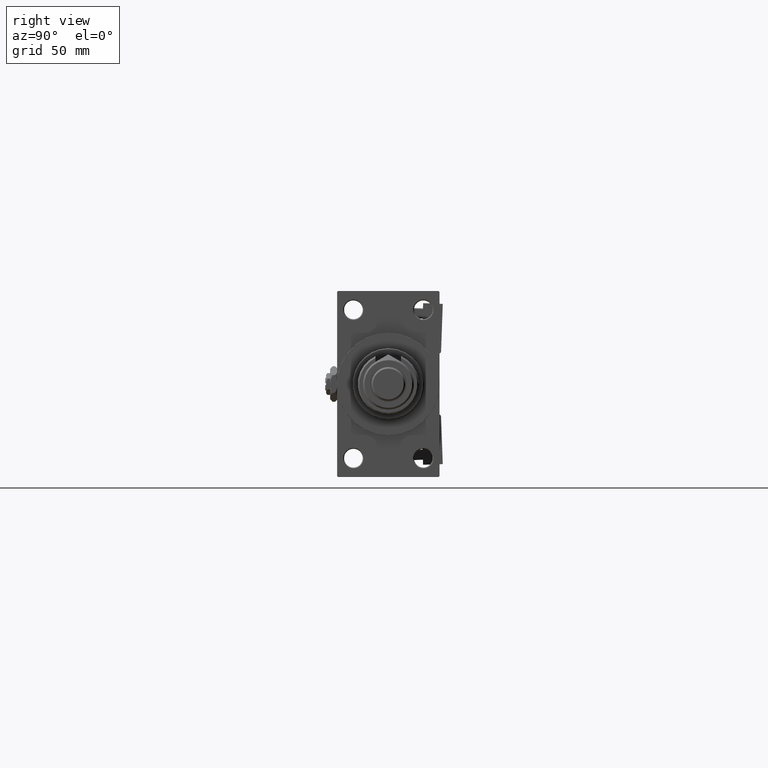
[diagram: clean part render]
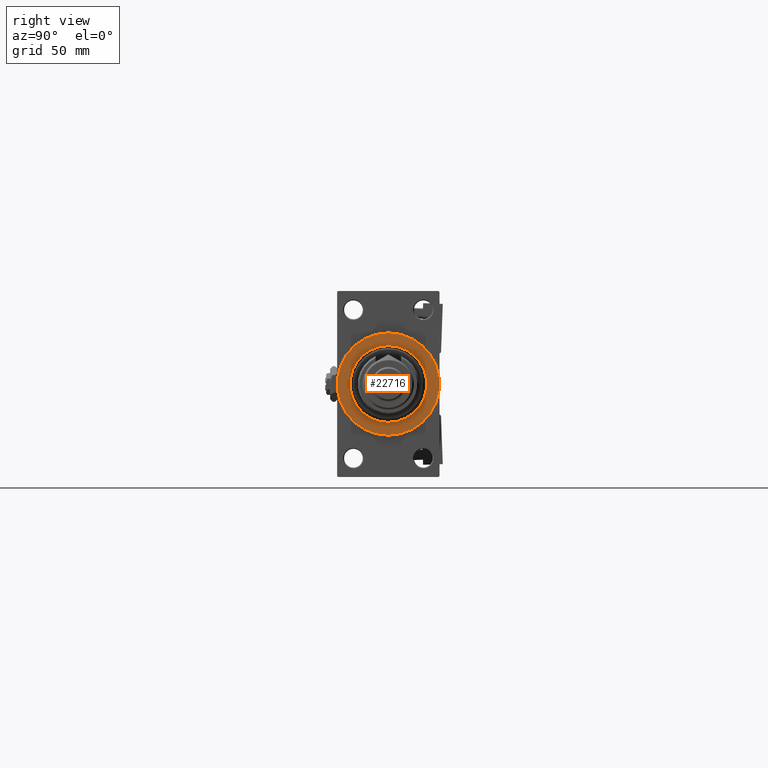
[diagram: same view with one face highlighted and labeled with its STEP entity id]
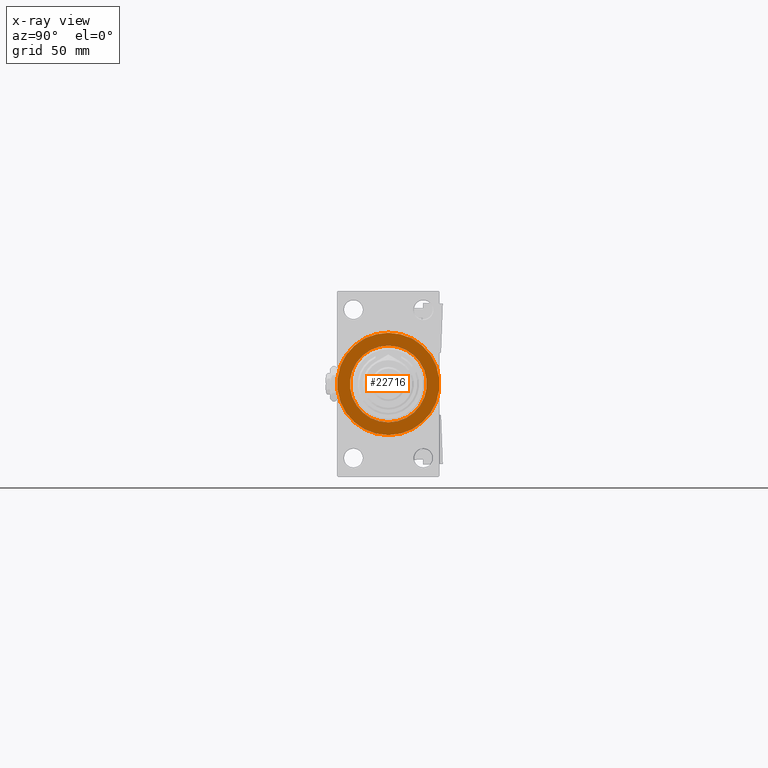
[diagram: x-ray of the same camera — body ghosted, the highlighted face saturated]
A machine part, right view. The second image highlights one B-rep face of the part: STEP entity #22716.
The next image is the same camera in x-ray: the body ghosted, the highlighted face saturated — about 0% of this face is hidden behind the body in this view.
In plain terms, the highlighted planar face has unit normal (1, 0, 0).
Its self-contained STEP definition (entity closure, byte-faithful):
#1891 = EDGE_CURVE ( 'NONE', #37243, #46543, #28387, .T. ) ;
#2621 = VERTEX_POINT ( 'NONE', #22812 ) ;
#3549 = DIRECTION ( 'NONE',  ( 0.000000000000000000, 0.000000000000000000, -1.000000000000000000 ) ) ;
#4711 = AXIS2_PLACEMENT_3D ( 'NONE', #41187, #16995, #3549 ) ;
#5263 = DIRECTION ( 'NONE',  ( 0.000000000000000000, 0.000000000000000000, -1.000000000000000000 ) ) ;
#5496 = AXIS2_PLACEMENT_3D ( 'NONE', #47841, #29981, #5263 ) ;
#6278 = PLANE ( 'NONE',  #51389 ) ;
#6606 = DIRECTION ( 'NONE',  ( 1.000000000000000000, 0.000000000000000000, 0.000000000000000000 ) ) ;
#8661 = DIRECTION ( 'NONE',  ( 0.000000000000000000, 0.000000000000000000, -1.000000000000000000 ) ) ;
#8920 = DIRECTION ( 'NONE',  ( 1.000000000000000000, 0.000000000000000000, 0.000000000000000000 ) ) ;
#11411 = CARTESIAN_POINT ( 'NONE',  ( 288.0000000000000568, 2.755455298081545172E-15, 22.50000000000000355 ) ) ;
#12234 = ORIENTED_EDGE ( 'NONE', *, *, #45694, .F. ) ;
#14224 = FACE_OUTER_BOUND ( 'NONE', #33295, .T. ) ;
#14825 = AXIS2_PLACEMENT_3D ( 'NONE', #21269, #8920, #8661 ) ;
#15093 = CARTESIAN_POINT ( 'NONE',  ( 288.0000000000000568, 0.000000000000000000, 0.000000000000000000 ) ) ;
#15371 = DIRECTION ( 'NONE',  ( 0.000000000000000000, 0.000000000000000000, -1.000000000000000000 ) ) ;
#15996 = CIRCLE ( 'NONE', #5496, 22.50000000000000355 ) ;
#16995 = DIRECTION ( 'NONE',  ( 1.000000000000000000, 0.000000000000000000, 0.000000000000000000 ) ) ;
#21269 = CARTESIAN_POINT ( 'NONE',  ( 288.0000000000000568, 0.000000000000000000, 0.000000000000000000 ) ) ;
#22716 = ADVANCED_FACE ( 'NONE', ( #47499, #14224 ), #6278, .T. ) ;
#22812 = CARTESIAN_POINT ( 'NONE',  ( 288.0000000000000568, 0.000000000000000000, -22.50000000000000355 ) ) ;
#28387 = CIRCLE ( 'NONE', #4711, 30.00000000000000000 ) ;
#29622 = EDGE_CURVE ( 'NONE', #46543, #37243, #38528, .T. ) ;
#29981 = DIRECTION ( 'NONE',  ( 1.000000000000000000, 0.000000000000000000, 0.000000000000000000 ) ) ;
#31803 = DIRECTION ( 'NONE',  ( 0.000000000000000000, 0.000000000000000000, -1.000000000000000000 ) ) ;
#33295 = EDGE_LOOP ( 'NONE', ( #34157, #44205 ) ) ;
#34109 = CARTESIAN_POINT ( 'NONE',  ( 288.0000000000000568, 3.673940397442059178E-15, -30.00000000000000000 ) ) ;
#34157 = ORIENTED_EDGE ( 'NONE', *, *, #1891, .T. ) ;
#35114 = CARTESIAN_POINT ( 'NONE',  ( 288.0000000000000568, 0.000000000000000000, 0.000000000000000000 ) ) ;
#37204 = CIRCLE ( 'NONE', #45099, 22.50000000000000355 ) ;
#37243 = VERTEX_POINT ( 'NONE', #44589 ) ;
#38528 = CIRCLE ( 'NONE', #14825, 30.00000000000000000 ) ;
#41187 = CARTESIAN_POINT ( 'NONE',  ( 288.0000000000000568, 0.000000000000000000, 0.000000000000000000 ) ) ;
#44205 = ORIENTED_EDGE ( 'NONE', *, *, #29622, .T. ) ;
#44589 = CARTESIAN_POINT ( 'NONE',  ( 288.0000000000000568, 0.000000000000000000, 30.00000000000000000 ) ) ;
#45099 = AXIS2_PLACEMENT_3D ( 'NONE', #15093, #6606, #15371 ) ;
#45694 = EDGE_CURVE ( 'NONE', #53240, #2621, #37204, .T. ) ;
#46505 = EDGE_CURVE ( 'NONE', #2621, #53240, #15996, .T. ) ;
#46543 = VERTEX_POINT ( 'NONE', #34109 ) ;
#47499 = FACE_BOUND ( 'NONE', #52447, .T. ) ;
#47841 = CARTESIAN_POINT ( 'NONE',  ( 288.0000000000000568, 0.000000000000000000, 0.000000000000000000 ) ) ;
#51389 = AXIS2_PLACEMENT_3D ( 'NONE', #35114, #52978, #31803 ) ;
#52219 = ORIENTED_EDGE ( 'NONE', *, *, #46505, .F. ) ;
#52447 = EDGE_LOOP ( 'NONE', ( #52219, #12234 ) ) ;
#52978 = DIRECTION ( 'NONE',  ( 1.000000000000000000, 0.000000000000000000, 0.000000000000000000 ) ) ;
#53240 = VERTEX_POINT ( 'NONE', #11411 ) ;